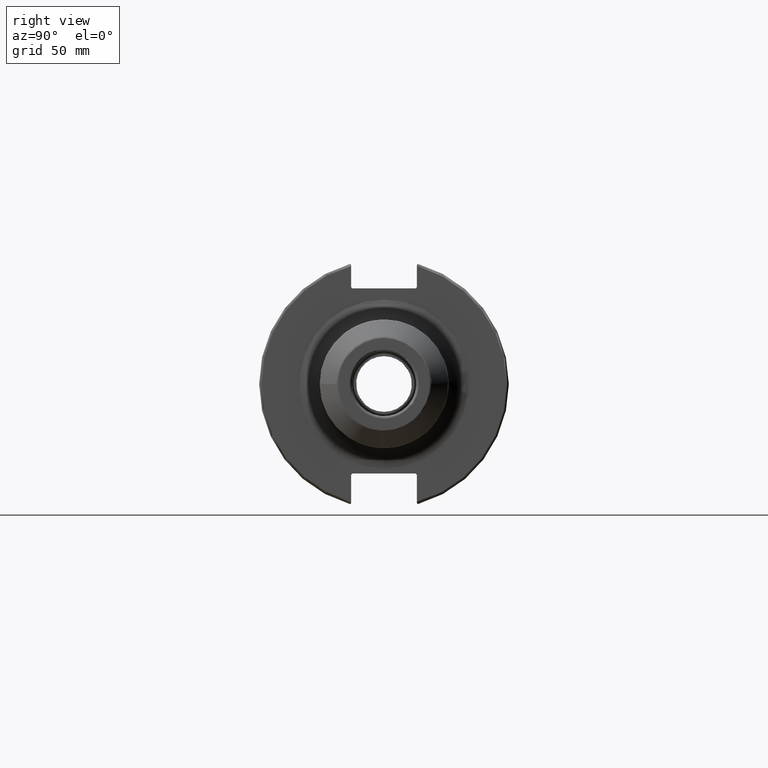
[diagram: clean part render]
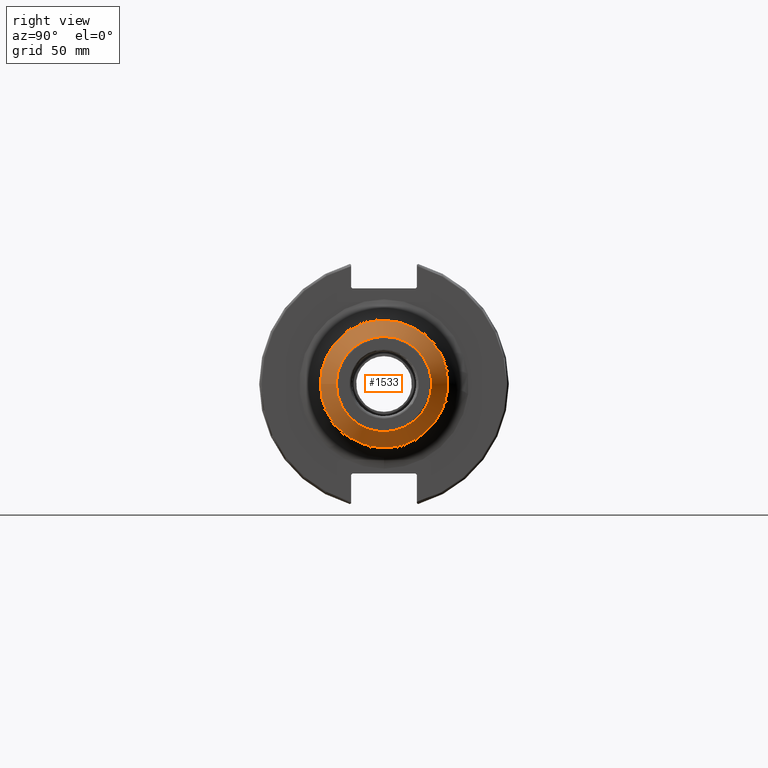
[diagram: same view with one face highlighted and labeled with its STEP entity id]
A machine part, right view. The second image highlights one B-rep face of the part: STEP entity #1533.
In plain terms, the highlighted conical surface has half-angle 45 deg.
Its self-contained STEP definition (entity closure, byte-faithful):
#45=CONICAL_SURFACE('',#1654,21.95,0.785398163397449);
#128=FACE_OUTER_BOUND('',#219,.T.);
#219=EDGE_LOOP('',(#1059,#1060,#1061,#1062,#1063,#1064));
#375=LINE('',#2427,#467);
#467=VECTOR('',#1850,21.95);
#559=CIRCLE('',#1649,25.1071067811865);
#560=CIRCLE('',#1650,25.1071067811865);
#564=CIRCLE('',#1655,18.7928932188135);
#565=CIRCLE('',#1656,18.7928932188135);
#646=VERTEX_POINT('',#2414);
#647=VERTEX_POINT('',#2415);
#650=VERTEX_POINT('',#2424);
#651=VERTEX_POINT('',#2425);
#810=EDGE_CURVE('',#646,#647,#559,.T.);
#811=EDGE_CURVE('',#647,#646,#560,.T.);
#815=EDGE_CURVE('',#650,#651,#564,.T.);
#816=EDGE_CURVE('',#650,#647,#375,.T.);
#817=EDGE_CURVE('',#651,#650,#565,.T.);
#1059=ORIENTED_EDGE('',*,*,#815,.F.);
#1060=ORIENTED_EDGE('',*,*,#816,.T.);
#1061=ORIENTED_EDGE('',*,*,#810,.F.);
#1062=ORIENTED_EDGE('',*,*,#811,.F.);
#1063=ORIENTED_EDGE('',*,*,#816,.F.);
#1064=ORIENTED_EDGE('',*,*,#817,.F.);
#1533=ADVANCED_FACE('',(#128),#45,.T.);
#1649=AXIS2_PLACEMENT_3D('',#2416,#1836,#1837);
#1650=AXIS2_PLACEMENT_3D('',#2417,#1838,#1839);
#1654=AXIS2_PLACEMENT_3D('',#2423,#1846,#1847);
#1655=AXIS2_PLACEMENT_3D('',#2426,#1848,#1849);
#1656=AXIS2_PLACEMENT_3D('',#2428,#1851,#1852);
#1836=DIRECTION('center_axis',(-1.,0.,0.));
#1837=DIRECTION('ref_axis',(0.,-1.,3.06161699786838E-17));
#1838=DIRECTION('center_axis',(-1.,0.,0.));
#1839=DIRECTION('ref_axis',(0.,-1.,3.06161699786838E-17));
#1846=DIRECTION('center_axis',(-1.,0.,0.));
#1847=DIRECTION('ref_axis',(0.,1.,0.));
#1848=DIRECTION('center_axis',(1.,0.,0.));
#1849=DIRECTION('ref_axis',(0.,-1.,3.06161699786838E-17));
#1850=DIRECTION('',(-0.707106781186547,-0.707106781186548,-8.65956056235494E-17));
#1851=DIRECTION('center_axis',(1.,0.,0.));
#1852=DIRECTION('ref_axis',(0.,-1.,3.06161699786838E-17));
#2414=CARTESIAN_POINT('',(145.792893218813,-3.07473379554309E-15,25.1071067811865));
#2415=CARTESIAN_POINT('',(145.792893218814,-25.1071067811865,-3.07473379554309E-15));
#2416=CARTESIAN_POINT('Origin',(145.792893218814,0.,-3.84341724442886E-15));
#2417=CARTESIAN_POINT('Origin',(145.792893218814,0.,-3.84341724442886E-15));
#2423=CARTESIAN_POINT('Origin',(148.95,0.,0.));
#2424=CARTESIAN_POINT('',(152.107106781187,-18.7928932188135,-2.30146565271379E-15));
#2425=CARTESIAN_POINT('',(152.107106781187,-2.30146565271379E-15,18.7928932188135));
#2426=CARTESIAN_POINT('Origin',(152.107106781187,0.,-2.87683206589224E-15));
#2427=CARTESIAN_POINT('',(148.95,-21.95,-2.68809972412844E-15));
#2428=CARTESIAN_POINT('Origin',(152.107106781187,0.,-2.87683206589224E-15));